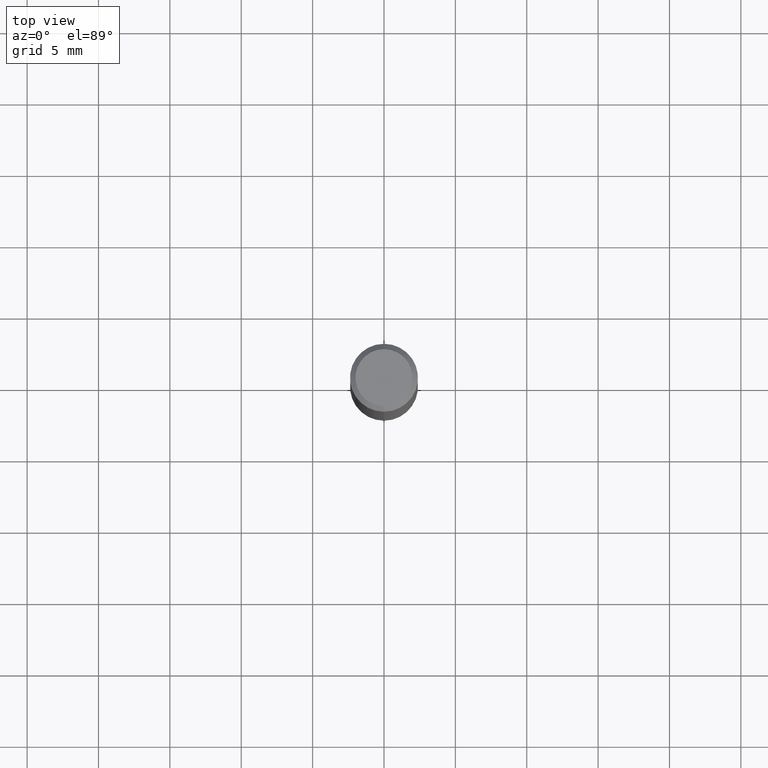
[diagram: clean part render]
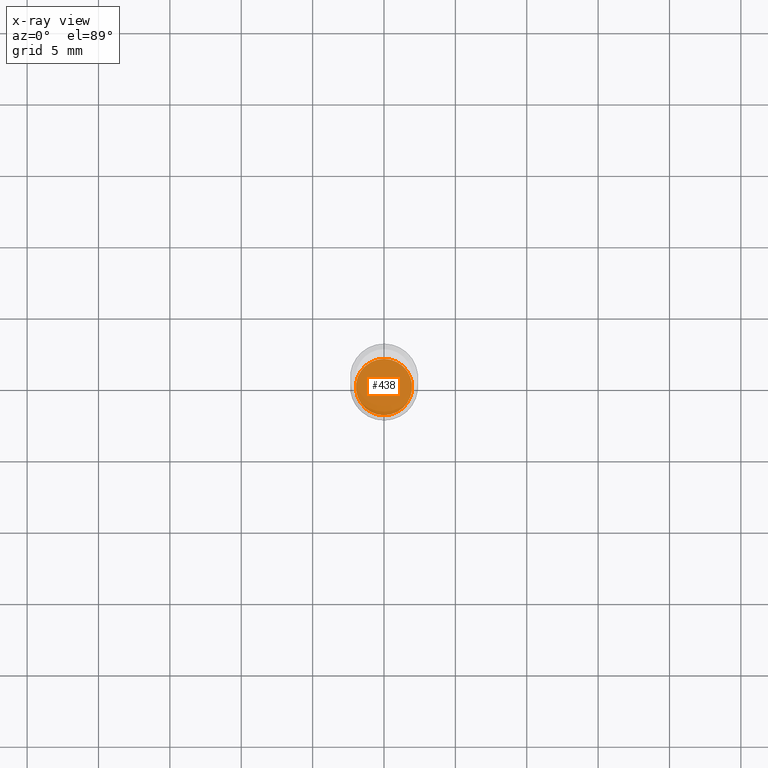
[diagram: x-ray — body ghosted, one internal face saturated and labeled with its STEP entity id]
A machine part, top view, then the same camera in x-ray: the body is ghosted and one INTERNAL B-rep face — a face not visible from any outside direction — is saturated and labeled: STEP entity #438.
In plain terms, the highlighted planar face has unit normal (-0, 0, 1).
Its self-contained STEP definition (entity closure, byte-faithful):
#18 = CARTESIAN_POINT ( 'NONE',  ( 3.668656605816388329E-29, -5.236572718615595766E-15, -1.500000000000000222 ) ) ;
#19 = ORIENTED_EDGE ( 'NONE', *, *, #115, .F. ) ;
#26 = CARTESIAN_POINT ( 'NONE',  ( -5.418779037884175500E-16, -0.07760000000000523424, -1.499999999999999778 ) ) ;
#86 = DIRECTION ( 'NONE',  ( -2.445771070544258513E-29, 3.491048479077063581E-15, 1.000000000000000000 ) ) ;
#93 = VERTEX_POINT ( 'NONE', #26 ) ;
#115 = EDGE_CURVE ( 'NONE', #93, #210, #358, .T. ) ;
#123 = PLANE ( 'NONE',  #337 ) ;
#148 = AXIS2_PLACEMENT_3D ( 'NONE', #18, #339, #444 ) ;
#165 = CARTESIAN_POINT ( 'NONE',  ( 3.668656605816388329E-29, -5.236572718615595766E-15, -1.500000000000000222 ) ) ;
#209 = FACE_OUTER_BOUND ( 'NONE', #435, .T. ) ;
#210 = VERTEX_POINT ( 'NONE', #254 ) ;
#254 = CARTESIAN_POINT ( 'NONE',  ( 5.531575197892741031E-16, 0.07759999999999475651, -1.500000000000000444 ) ) ;
#258 = DIRECTION ( 'NONE',  ( -6.982962677686265922E-15, -1.000000000000000000, 3.491048479077063581E-15 ) ) ;
#264 = DIRECTION ( 'NONE',  ( -2.445771070544258513E-29, 3.491048479077063976E-15, 1.000000000000000000 ) ) ;
#276 = CIRCLE ( 'NONE', #148, 0.07760000000000000231 ) ;
#293 = EDGE_CURVE ( 'NONE', #210, #93, #276, .T. ) ;
#327 = AXIS2_PLACEMENT_3D ( 'NONE', #165, #264, #347 ) ;
#337 = AXIS2_PLACEMENT_3D ( 'NONE', #443, #86, #258 ) ;
#339 = DIRECTION ( 'NONE',  ( -2.445771070544258513E-29, 3.491048479077063976E-15, 1.000000000000000000 ) ) ;
#347 = DIRECTION ( 'NONE',  ( -6.982962677686265922E-15, -1.000000000000000000, 3.520422672247761757E-15 ) ) ;
#358 = CIRCLE ( 'NONE', #327, 0.07760000000000000231 ) ;
#433 = ORIENTED_EDGE ( 'NONE', *, *, #293, .F. ) ;
#435 = EDGE_LOOP ( 'NONE', ( #19, #433 ) ) ;
#438 = ADVANCED_FACE ( 'NONE', ( #209 ), #123, .F. ) ;
#443 = CARTESIAN_POINT ( 'NONE',  ( 3.668656605816387769E-29, -5.236572718615595766E-15, -1.499999999999999778 ) ) ;
#444 = DIRECTION ( 'NONE',  ( -6.982962677686265922E-15, -1.000000000000000000, 3.520422672247761757E-15 ) ) ;